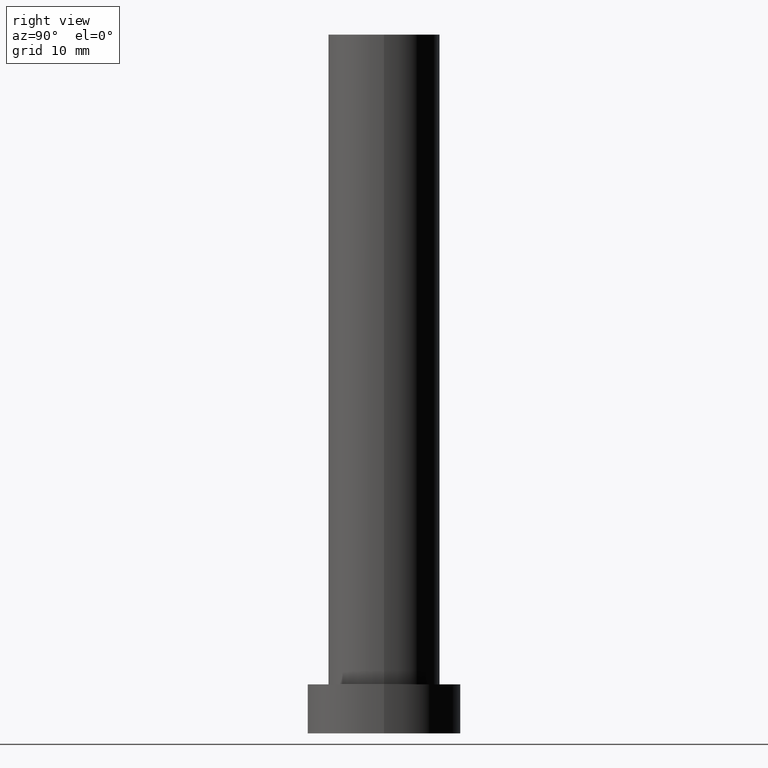
[diagram: clean part render]
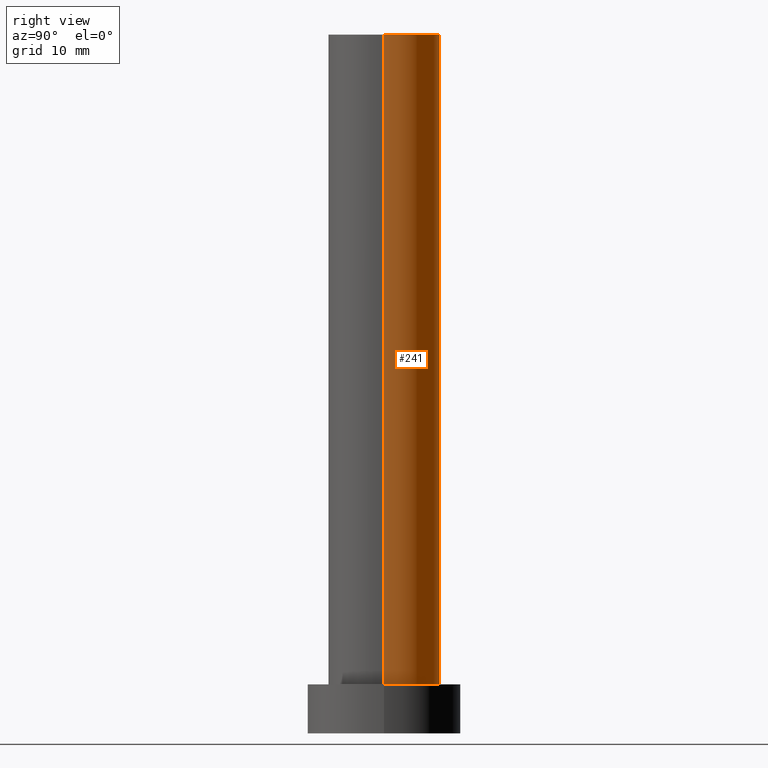
[diagram: same view with one face highlighted and labeled with its STEP entity id]
A machine part, right view. The second image highlights one B-rep face of the part: STEP entity #241.
In plain terms, the highlighted cylindrical surface (partial cylindrical patch) has radius 8 mm, axis along (-0, -0, -1).
Its self-contained STEP definition (entity closure, byte-faithful):
#5 = AXIS2_PLACEMENT_3D ( 'NONE', #115, #57, #21 ) ;
#17 = EDGE_CURVE ( 'NONE', #177, #220, #191, .T. ) ;
#21 = DIRECTION ( 'NONE',  ( -1.000000000000000000, 0.000000000000000000, 0.000000000000000000 ) ) ;
#23 = LINE ( 'NONE', #132, #38 ) ;
#30 = ORIENTED_EDGE ( 'NONE', *, *, #17, .F. ) ;
#38 = VECTOR ( 'NONE', #212, 1000.000000000000000 ) ;
#42 = CARTESIAN_POINT ( 'NONE',  ( 8.000000000000000000, 9.797174393178823685E-16, 100.0000000000000000 ) ) ;
#48 = ORIENTED_EDGE ( 'NONE', *, *, #255, .F. ) ;
#51 = DIRECTION ( 'NONE',  ( 1.000000000000000000, 0.000000000000000000, 0.000000000000000000 ) ) ;
#57 = DIRECTION ( 'NONE',  ( -0.000000000000000000, -0.000000000000000000, -1.000000000000000000 ) ) ;
#69 = ORIENTED_EDGE ( 'NONE', *, *, #250, .T. ) ;
#72 = ORIENTED_EDGE ( 'NONE', *, *, #201, .T. ) ;
#86 = AXIS2_PLACEMENT_3D ( 'NONE', #219, #221, #51 ) ;
#96 = DIRECTION ( 'NONE',  ( 0.000000000000000000, 0.000000000000000000, 1.000000000000000000 ) ) ;
#115 = CARTESIAN_POINT ( 'NONE',  ( 0.000000000000000000, 0.000000000000000000, 100.0000000000000000 ) ) ;
#116 = CARTESIAN_POINT ( 'NONE',  ( 8.000000000000000000, 9.797174393178823685E-16, 7.000000000000000000 ) ) ;
#117 = LINE ( 'NONE', #42, #135 ) ;
#132 = CARTESIAN_POINT ( 'NONE',  ( -8.000000000000000000, 0.000000000000000000, 100.0000000000000000 ) ) ;
#135 = VECTOR ( 'NONE', #192, 1000.000000000000000 ) ;
#138 = VERTEX_POINT ( 'NONE', #116 ) ;
#142 = CARTESIAN_POINT ( 'NONE',  ( -8.000000000000000000, 0.000000000000000000, 7.000000000000000000 ) ) ;
#177 = VERTEX_POINT ( 'NONE', #252 ) ;
#186 = CARTESIAN_POINT ( 'NONE',  ( 0.000000000000000000, 0.000000000000000000, 7.000000000000000000 ) ) ;
#191 = CIRCLE ( 'NONE', #86, 8.000000000000000000 ) ;
#192 = DIRECTION ( 'NONE',  ( -0.000000000000000000, -0.000000000000000000, -1.000000000000000000 ) ) ;
#201 = EDGE_CURVE ( 'NONE', #138, #238, #245, .T. ) ;
#206 = CARTESIAN_POINT ( 'NONE',  ( -8.000000000000000000, 0.000000000000000000, 100.0000000000000000 ) ) ;
#212 = DIRECTION ( 'NONE',  ( -0.000000000000000000, -0.000000000000000000, -1.000000000000000000 ) ) ;
#219 = CARTESIAN_POINT ( 'NONE',  ( 0.000000000000000000, 0.000000000000000000, 100.0000000000000000 ) ) ;
#220 = VERTEX_POINT ( 'NONE', #206 ) ;
#221 = DIRECTION ( 'NONE',  ( 0.000000000000000000, 0.000000000000000000, 1.000000000000000000 ) ) ;
#227 = CYLINDRICAL_SURFACE ( 'NONE', #5, 8.000000000000000000 ) ;
#230 = AXIS2_PLACEMENT_3D ( 'NONE', #186, #96, #233 ) ;
#233 = DIRECTION ( 'NONE',  ( 1.000000000000000000, 0.000000000000000000, 0.000000000000000000 ) ) ;
#238 = VERTEX_POINT ( 'NONE', #142 ) ;
#239 = EDGE_LOOP ( 'NONE', ( #30, #69, #72, #48 ) ) ;
#241 = ADVANCED_FACE ( 'NONE', ( #248 ), #227, .T. ) ;
#245 = CIRCLE ( 'NONE', #230, 8.000000000000000000 ) ;
#248 = FACE_OUTER_BOUND ( 'NONE', #239, .T. ) ;
#250 = EDGE_CURVE ( 'NONE', #177, #138, #117, .T. ) ;
#252 = CARTESIAN_POINT ( 'NONE',  ( 8.000000000000000000, 9.797174393178823685E-16, 100.0000000000000000 ) ) ;
#255 = EDGE_CURVE ( 'NONE', #220, #238, #23, .T. ) ;